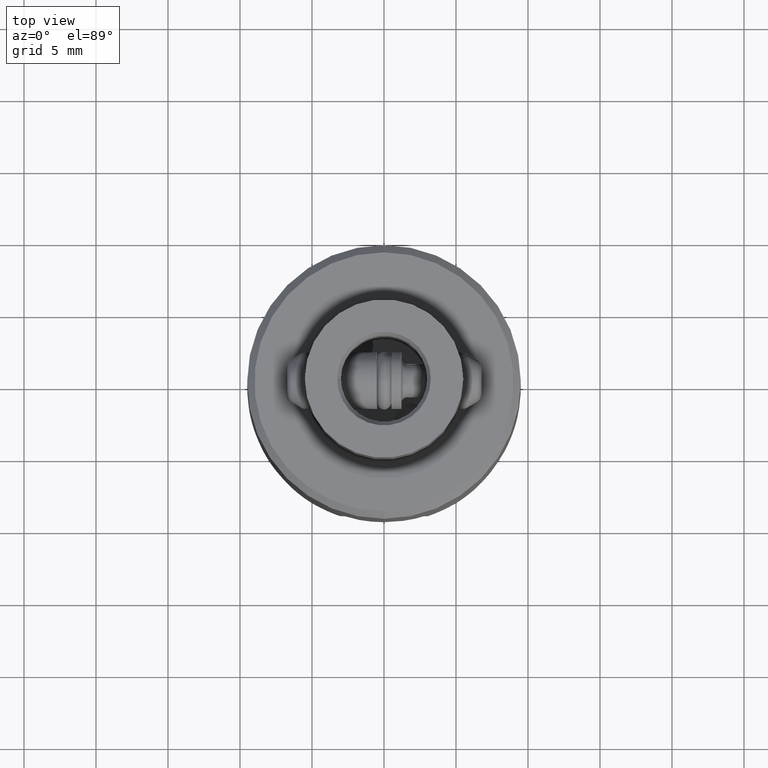
[diagram: clean part render]
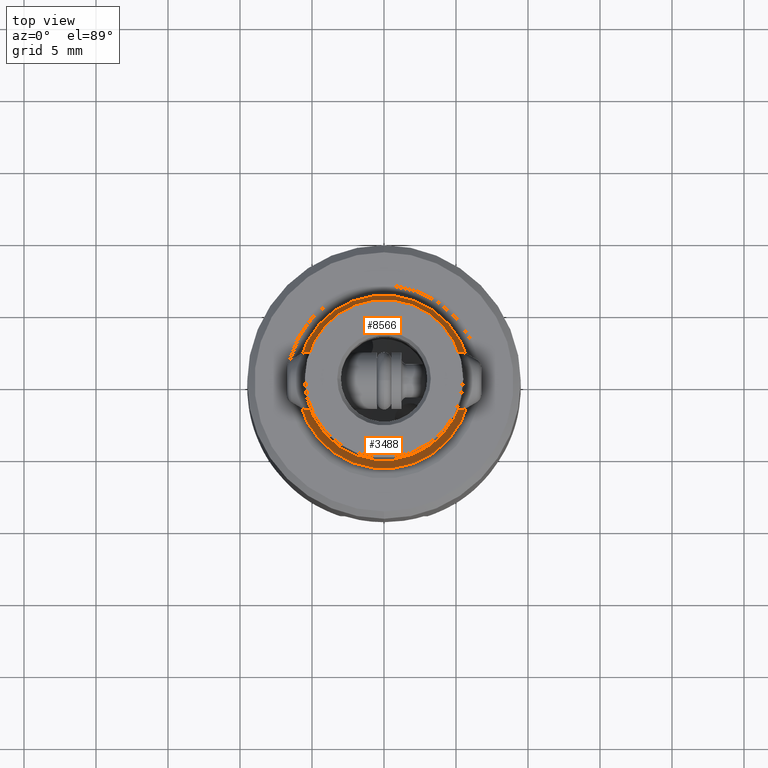
[diagram: same view with one multi-face feature highlighted, each face labeled with its STEP entity id]
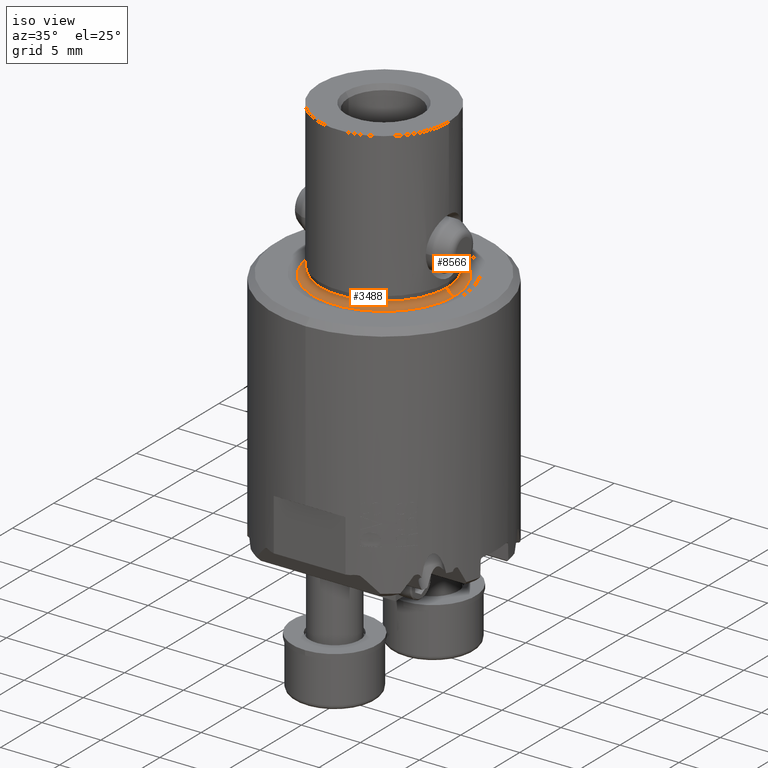
[diagram: same view with one multi-face feature highlighted, each face labeled with its STEP entity id]
A machine part, top view. The highlighted faces form ONE feature: a constant-radius fillet chain: 2 tangent blend faces with common blend radius 0.5 mm. The faces share edges in the B-rep.
A second angle (iso view) of the same feature is appended — it is thin or edge-on in the first view.
Their STEP definitions:
[1] entity #3488 (Torus):
#3488=ADVANCED_FACE('NONE',(#10140),#10141,.F.);
#3686=EDGE_CURVE('NONE',#9242,#6430,#10352,.T.);
#5268=VERTEX_POINT('NONE',#12103);
#6430=VERTEX_POINT('NONE',#13404);
#7642=EDGE_CURVE('NONE',#6430,#9734,#14744,.T.);
#9242=VERTEX_POINT('NONE',#16511);
#9734=VERTEX_POINT('NONE',#17048);
#9752=EDGE_CURVE('NONE',#5268,#9734,#17067,.F.);
#9858=EDGE_CURVE('NONE',#9242,#5268,#17178,.T.);
#10140=FACE_OUTER_BOUND('',#17563,.T.);
#10141=TOROIDAL_SURFACE('',#17564,5.9,0.499999999999999);
#10352=CIRCLE('',#19030,5.4);
#12103=CARTESIAN_POINT('',(-6.02940952255126,8.5689606922299E-015,-0.182962913144513));
#13404=CARTESIAN_POINT('',(5.4,-7.01313837793141E-015,0.300000000000005));
#14744=CIRCLE('',#37106,0.5);
#16511=CARTESIAN_POINT('',(-5.4,7.67444764947098E-015,0.300000000000005));
#17048=CARTESIAN_POINT('',(6.02940952255126,-7.8305709849758E-015,-0.182962913144541));
#17067=CIRCLE('',#45286,6.02940952255126);
#17178=CIRCLE('',#45514,0.5);
#17563=EDGE_LOOP('',(#46029,#46030,#46031,#46032));
#17564=AXIS2_PLACEMENT_3D('',#46033,#46034,#46035);
#19030=AXIS2_PLACEMENT_3D('',#46211,#46212,#46213);
#37106=AXIS2_PLACEMENT_3D('',#50916,#50917,#50918);
#45286=AXIS2_PLACEMENT_3D('',#53348,#53349,#53350);
#45514=AXIS2_PLACEMENT_3D('',#53436,#53437,#53438);
#46029=ORIENTED_EDGE('',*,*,#3686,.F.);
#46030=ORIENTED_EDGE('',*,*,#9858,.T.);
#46031=ORIENTED_EDGE('',*,*,#9752,.T.);
#46032=ORIENTED_EDGE('',*,*,#7642,.F.);
#46033=CARTESIAN_POINT('',(7.1437810094528E-016,7.73336445164827E-031,0.300000000000005));
#46034=DIRECTION('',(2.38126033648423E-015,2.57778815054938E-030,1.0));
#46035=DIRECTION('',(1.0,-1.29872932924656E-015,-2.38126033648423E-015));
#46211=CARTESIAN_POINT('',(7.1437810094528E-016,7.73336445164827E-031,0.300000000000005));
#46212=DIRECTION('',(2.37922143406541E-015,2.57784461187061E-030,1.0));
#46213=DIRECTION('',(1.0,-2.76920173874876E-017,-2.37922143406541E-015));
#50916=CARTESIAN_POINT('',(5.9,-7.66250304255468E-015,0.299999999999991));
#50917=DIRECTION('',(-1.29872932924656E-015,-1.0,5.67040079011297E-030));
#50918=DIRECTION('',(-1.0,1.29872932924656E-015,0.0));
#53348=CARTESIAN_POINT('',(-4.36329949247925E-016,-4.70798544939158E-031,-0.182962913144527));
#53349=DIRECTION('',(-2.38260126994232E-015,-2.57604664093879E-030,-1.0));
#53350=DIRECTION('',(1.0,-1.29872932924656E-015,-2.38260126994232E-015));
#53436=CARTESIAN_POINT('',(-5.9,8.38504465405162E-015,0.300000000000019));
#53437=DIRECTION('',(1.42119400916129E-015,1.0,-5.96202107501416E-030));
#53438=DIRECTION('',(1.0,-1.42119400916129E-015,0.0));
[2] entity #8566 (Torus):
#5268=VERTEX_POINT('NONE',#12103);
#6430=VERTEX_POINT('NONE',#13404);
#6520=EDGE_CURVE('NONE',#6430,#9242,#13505,.T.);
#7318=EDGE_CURVE('NONE',#9734,#5268,#14385,.F.);
#7642=EDGE_CURVE('NONE',#6430,#9734,#14744,.T.);
#8566=ADVANCED_FACE('NONE',(#15750),#15751,.F.);
#9242=VERTEX_POINT('NONE',#16511);
#9734=VERTEX_POINT('NONE',#17048);
#9858=EDGE_CURVE('NONE',#9242,#5268,#17178,.T.);
#12103=CARTESIAN_POINT('',(-6.02940952255126,8.5689606922299E-015,-0.182962913144513));
#13404=CARTESIAN_POINT('',(5.4,-7.01313837793141E-015,0.300000000000005));
#13505=CIRCLE('',#32226,5.4);
#14385=CIRCLE('',#35410,6.02940952255126);
#14744=CIRCLE('',#37106,0.5);
#15750=FACE_OUTER_BOUND('',#40512,.T.);
#15751=TOROIDAL_SURFACE('',#40513,5.9,0.499999999999999);
#16511=CARTESIAN_POINT('',(-5.4,7.67444764947098E-015,0.300000000000005));
#17048=CARTESIAN_POINT('',(6.02940952255126,-7.8305709849758E-015,-0.182962913144541));
#17178=CIRCLE('',#45514,0.5);
#32226=AXIS2_PLACEMENT_3D('',#49649,#49650,#49651);
#35410=AXIS2_PLACEMENT_3D('',#50542,#50543,#50544);
#37106=AXIS2_PLACEMENT_3D('',#50916,#50917,#50918);
#40512=EDGE_LOOP('',(#51880,#51881,#51882,#51883));
#40513=AXIS2_PLACEMENT_3D('',#51884,#51885,#51886);
#45514=AXIS2_PLACEMENT_3D('',#53436,#53437,#53438);
#49649=CARTESIAN_POINT('',(7.1437810094528E-016,7.73336445164827E-031,0.300000000000005));
#49650=DIRECTION('',(2.37922143406541E-015,2.57784461187061E-030,1.0));
#49651=DIRECTION('',(1.0,-2.76920173874876E-017,-2.37922143406541E-015));
#50542=CARTESIAN_POINT('',(-4.36329949247925E-016,-4.70798544939158E-031,-0.182962913144527));
#50543=DIRECTION('',(-2.38260126994232E-015,-2.57604664093879E-030,-1.0));
#50544=DIRECTION('',(1.0,-1.29872932924656E-015,-2.38260126994232E-015));
#50916=CARTESIAN_POINT('',(5.9,-7.66250304255468E-015,0.299999999999991));
#50917=DIRECTION('',(-1.29872932924656E-015,-1.0,5.67040079011297E-030));
#50918=DIRECTION('',(-1.0,1.29872932924656E-015,0.0));
#51880=ORIENTED_EDGE('',*,*,#6520,.F.);
#51881=ORIENTED_EDGE('',*,*,#7642,.T.);
#51882=ORIENTED_EDGE('',*,*,#7318,.T.);
#51883=ORIENTED_EDGE('',*,*,#9858,.F.);
#51884=CARTESIAN_POINT('',(7.1437810094528E-016,7.73336445164827E-031,0.300000000000005));
#51885=DIRECTION('',(2.38126033648423E-015,2.57778815054938E-030,1.0));
#51886=DIRECTION('',(1.0,-1.29872932924656E-015,-2.38126033648423E-015));
#53436=CARTESIAN_POINT('',(-5.9,8.38504465405162E-015,0.300000000000019));
#53437=DIRECTION('',(1.42119400916129E-015,1.0,-5.96202107501416E-030));
#53438=DIRECTION('',(1.0,-1.42119400916129E-015,0.0));